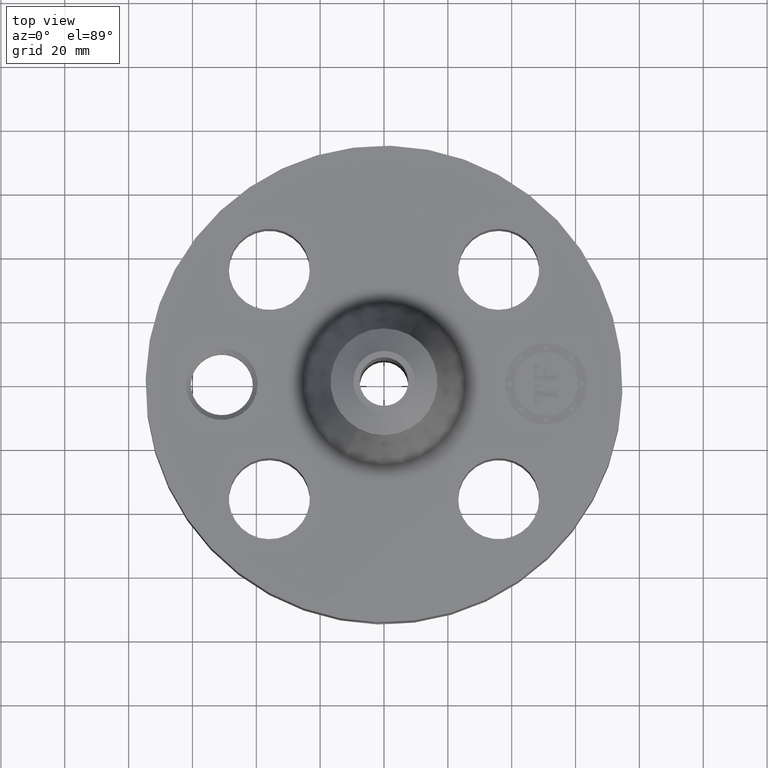
[diagram: clean part render]
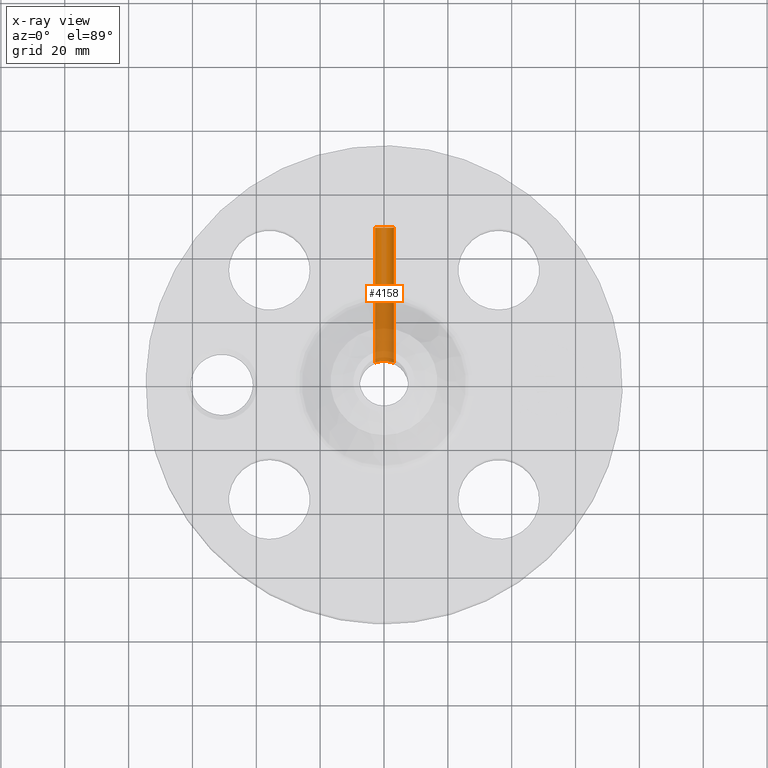
[diagram: x-ray — body ghosted, one internal face saturated and labeled with its STEP entity id]
A machine part, top view, then the same camera in x-ray: the body is ghosted and one INTERNAL B-rep face — a face not visible from any outside direction — is saturated and labeled: STEP entity #4158.
In plain terms, the highlighted cylindrical surface (edge-blend (fillet) strip) has radius 3.175 mm, axis along (-0, -1, 0).
Its self-contained STEP definition (entity closure, byte-faithful):
#4131=AXIS2_PLACEMENT_3D('Cylinder Axis2P3D',#4128,#4129,#4130) ;
#4142=AXIS2_PLACEMENT_3D('Circle Axis2P3D',#4140,#4141,$) ;
#2917=CARTESIAN_POINT('Vertex',(0.109697820237,0.27868734854,0.99992819233)) ;
#2919=CARTESIAN_POINT('Vertex',(-0.109697820237,0.27868734854,0.880071807678)) ;
#2923=CARTESIAN_POINT('Control Point',(0.109697820237,0.27868734854,0.99992819233)) ;
#2924=CARTESIAN_POINT('Control Point',(0.119052750985,0.275005030283,0.982804106458)) ;
#2925=CARTESIAN_POINT('Control Point',(0.12514156569,0.272154981827,0.963716813399)) ;
#2926=CARTESIAN_POINT('Control Point',(0.127379754462,0.271016749893,0.943311163085)) ;
#2927=CARTESIAN_POINT('Control Point',(0.123153811523,0.273231024964,0.899911363888)) ;
#2928=CARTESIAN_POINT('Control Point',(0.10192633417,0.282067269229,0.862445756945)) ;
#2929=CARTESIAN_POINT('Control Point',(0.0864426297838,0.287673958916,0.845515600053)) ;
#2930=CARTESIAN_POINT('Control Point',(0.0507121314421,0.296909802022,0.820737390912)) ;
#2931=CARTESIAN_POINT('Control Point',(0.00739098886259,0.300500591955,0.812671894684)) ;
#2932=CARTESIAN_POINT('Control Point',(-0.0137403193228,0.300258568057,0.813211386213)) ;
#2933=CARTESIAN_POINT('Control Point',(-0.0500295250808,0.296471468882,0.821852028844)) ;
#2934=CARTESIAN_POINT('Control Point',(-0.0802938379473,0.289006584964,0.84218908544)) ;
#2935=CARTESIAN_POINT('Control Point',(-0.0921044062986,0.285305985179,0.853237240082)) ;
#2936=CARTESIAN_POINT('Control Point',(-0.102005316158,0.281715297006,0.865990773413)) ;
#2937=CARTESIAN_POINT('Control Point',(-0.109697820237,0.27868734854,0.880071807678)) ;
#4128=CARTESIAN_POINT('Axis2P3D Location',(2.37707727707E-015,2.93606299214,0.940000000004)) ;
#4133=CARTESIAN_POINT('Line Origine',(0.109697820237,1.10768392157,0.99992819233)) ;
#4137=CARTESIAN_POINT('Vertex',(0.109697820237,1.94321662098,0.99992819233)) ;
#4140=CARTESIAN_POINT('Axis2P3D Location',(2.1946943575E-015,1.94321662098,0.940000000004)) ;
#4144=CARTESIAN_POINT('Vertex',(-0.109697820237,1.94321662098,0.880071807678)) ;
#4147=CARTESIAN_POINT('Line Origine',(-0.109697820237,1.10768392157,0.880071807678)) ;
#4129=DIRECTION('Axis2P3D Direction',(-7.2321661367E-018,-0.0393700787402,0.)) ;
#4130=DIRECTION('Axis2P3D XDirection',(0.0345504945626,-6.34682288626E-018,0.0188750212049)) ;
#4134=DIRECTION('Vector Direction',(-7.41449960241E-018,-0.0393700787402,0.)) ;
#4141=DIRECTION('Axis2P3D Direction',(-7.2321661367E-018,-0.0393700787402,0.)) ;
#4148=DIRECTION('Vector Direction',(-7.41449960241E-018,-0.0393700787402,0.)) ;
#4135=VECTOR('Line Direction',#4134,0.0393700787402) ;
#4149=VECTOR('Line Direction',#4148,0.0393700787402) ;
#4153=ORIENTED_EDGE('',*,*,#2938,.F.) ;
#4154=ORIENTED_EDGE('',*,*,#4139,.T.) ;
#4155=ORIENTED_EDGE('',*,*,#4146,.F.) ;
#4156=ORIENTED_EDGE('',*,*,#4151,.F.) ;
#4158=ADVANCED_FACE('PartBody',(#4157),#4132,.F.) ;
#2922=B_SPLINE_CURVE_WITH_KNOTS('',5,(#2923,#2924,#2925,#2926,#2927,#2928,#2929,#2930,#2931,#2932,#2933,#2934,#2935,#2936,#2937),.UNSPECIFIED.,.F.,.U.,(6,3,3,3,6),(0.,3.56645538934,7.67660148211,11.3390046364,14.2716797536),.UNSPECIFIED.) ;
#4143=CIRCLE('generated circle',#4142,0.125000000001) ;
#4132=CYLINDRICAL_SURFACE('generated cylinder',#4131,0.125000000001) ;
#2938=EDGE_CURVE('',#2918,#2920,#2922,.T.) ;
#4139=EDGE_CURVE('',#2918,#4138,#4136,.F.) ;
#4146=EDGE_CURVE('',#4145,#4138,#4143,.T.) ;
#4151=EDGE_CURVE('',#2920,#4145,#4150,.F.) ;
#4152=EDGE_LOOP('',(#4153,#4154,#4155,#4156)) ;
#4157=FACE_OUTER_BOUND('',#4152,.T.) ;
#4136=LINE('Line',#4133,#4135) ;
#4150=LINE('Line',#4147,#4149) ;
#2918=VERTEX_POINT('',#2917) ;
#2920=VERTEX_POINT('',#2919) ;
#4138=VERTEX_POINT('',#4137) ;
#4145=VERTEX_POINT('',#4144) ;